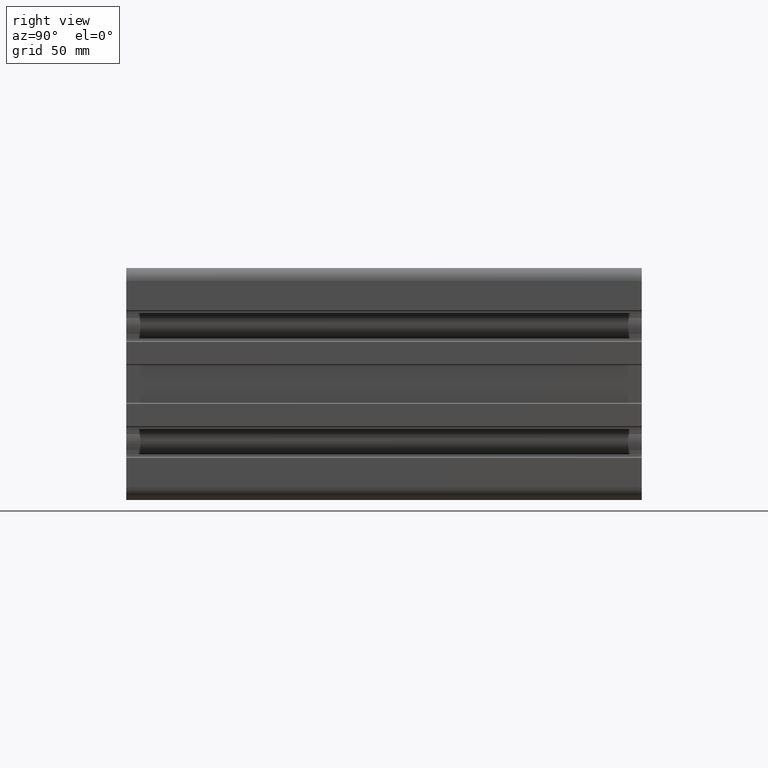
[diagram: clean part render]
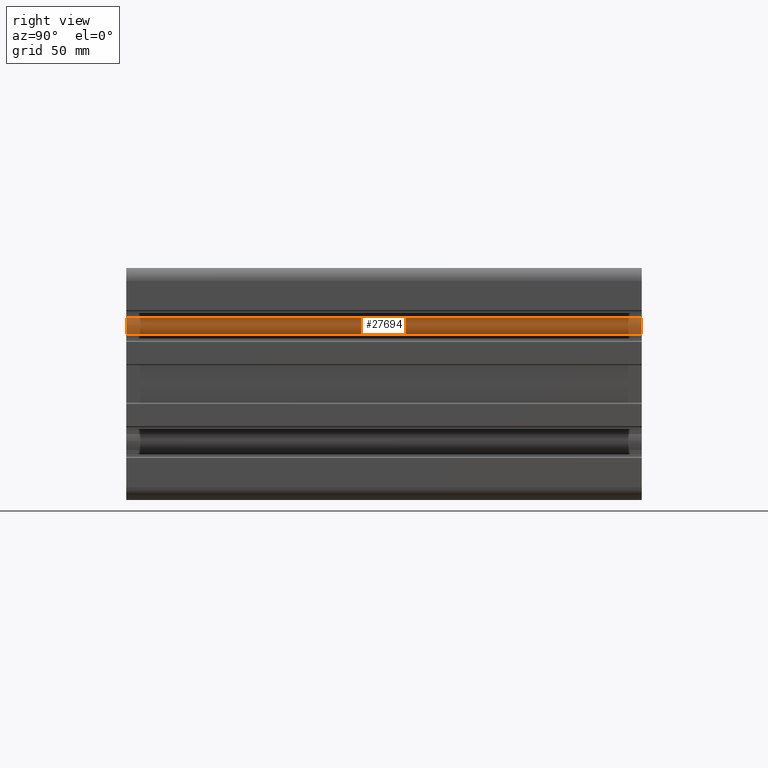
[diagram: same view with one face highlighted and labeled with its STEP entity id]
A machine part, right view. The second image highlights one B-rep face of the part: STEP entity #27694.
In plain terms, the highlighted cylindrical surface (edge-blend (fillet) strip) has radius 10 mm, axis along (0, 1, 0).
Its self-contained STEP definition (entity closure, byte-faithful):
#306 = VECTOR ( 'NONE', #9347, 1000.000000000000000 ) ;
#2450 = CARTESIAN_POINT ( 'NONE',  ( 67.50000000000000000, 0.0000000000000000000, 22.50000000000000000 ) ) ;
#4413 = ORIENTED_EDGE ( 'NONE', *, *, #22181, .T. ) ;
#5980 = VERTEX_POINT ( 'NONE', #31476 ) ;
#6293 = DIRECTION ( 'NONE',  ( -0.0000000000000000000, -1.000000000000000000, -0.0000000000000000000 ) ) ;
#9347 = DIRECTION ( 'NONE',  ( -0.0000000000000000000, -1.000000000000000000, -0.0000000000000000000 ) ) ;
#9487 = EDGE_CURVE ( 'NONE', #5980, #15672, #25338, .T. ) ;
#9794 = ORIENTED_EDGE ( 'NONE', *, *, #25734, .T. ) ;
#10424 = LINE ( 'NONE', #12817, #31227 ) ;
#10720 = CIRCLE ( 'NONE', #21735, 10.00000000000000200 ) ;
#10854 = VERTEX_POINT ( 'NONE', #18162 ) ;
#12817 = CARTESIAN_POINT ( 'NONE',  ( 77.00000000000007100, 0.0000000000000000000, 25.62249899919901700 ) ) ;
#13053 = VERTEX_POINT ( 'NONE', #41432 ) ;
#14096 = ORIENTED_EDGE ( 'NONE', *, *, #9487, .F. ) ;
#15672 = VERTEX_POINT ( 'NONE', #17427 ) ;
#16030 = CARTESIAN_POINT ( 'NONE',  ( 77.00000000000000000, 0.0000000000000000000, 19.37750100080080200 ) ) ;
#17427 = CARTESIAN_POINT ( 'NONE',  ( 77.00000000000000000, 200.0000000000000000, 19.37750100080078800 ) ) ;
#18117 = DIRECTION ( 'NONE',  ( 0.0000000000000000000, 0.0000000000000000000, 1.000000000000000000 ) ) ;
#18162 = CARTESIAN_POINT ( 'NONE',  ( 77.00000000000000000, 0.0000000000000000000, 19.37750100080078800 ) ) ;
#18398 = DIRECTION ( 'NONE',  ( 0.0000000000000000000, 0.0000000000000000000, 1.000000000000000000 ) ) ;
#21735 = AXIS2_PLACEMENT_3D ( 'NONE', #2450, #31648, #18398 ) ;
#22181 = EDGE_CURVE ( 'NONE', #5980, #13053, #10424, .T. ) ;
#22466 = DIRECTION ( 'NONE',  ( 0.0000000000000000000, 1.000000000000000000, 0.0000000000000000000 ) ) ;
#25338 = CIRCLE ( 'NONE', #30488, 10.00000000000000200 ) ;
#25734 = EDGE_CURVE ( 'NONE', #13053, #10854, #10720, .T. ) ;
#27620 = ORIENTED_EDGE ( 'NONE', *, *, #36849, .F. ) ;
#27694 = ADVANCED_FACE ( 'NONE', ( #43013 ), #32612, .T. ) ;
#30488 = AXIS2_PLACEMENT_3D ( 'NONE', #31786, #31947, #18117 ) ;
#31227 = VECTOR ( 'NONE', #6293, 1000.000000000000000 ) ;
#31476 = CARTESIAN_POINT ( 'NONE',  ( 77.00000000000004300, 200.0000000000000000, 25.62249899919912000 ) ) ;
#31648 = DIRECTION ( 'NONE',  ( 0.0000000000000000000, 1.000000000000000000, 0.0000000000000000000 ) ) ;
#31786 = CARTESIAN_POINT ( 'NONE',  ( 67.50000000000000000, 200.0000000000000000, 22.50000000000000000 ) ) ;
#31947 = DIRECTION ( 'NONE',  ( 0.0000000000000000000, 1.000000000000000000, 0.0000000000000000000 ) ) ;
#32247 = DIRECTION ( 'NONE',  ( 0.0000000000000000000, 0.0000000000000000000, 1.000000000000000000 ) ) ;
#32512 = LINE ( 'NONE', #16030, #306 ) ;
#32612 = CYLINDRICAL_SURFACE ( 'NONE', #41121, 10.00000000000000200 ) ;
#32682 = CARTESIAN_POINT ( 'NONE',  ( 67.50000000000000000, 0.0000000000000000000, 22.50000000000000000 ) ) ;
#33151 = EDGE_LOOP ( 'NONE', ( #9794, #27620, #14096, #4413 ) ) ;
#36849 = EDGE_CURVE ( 'NONE', #15672, #10854, #32512, .T. ) ;
#41121 = AXIS2_PLACEMENT_3D ( 'NONE', #32682, #22466, #32247 ) ;
#41432 = CARTESIAN_POINT ( 'NONE',  ( 77.00000000000004300, 0.0000000000000000000, 25.62249899919912000 ) ) ;
#43013 = FACE_OUTER_BOUND ( 'NONE', #33151, .T. ) ;